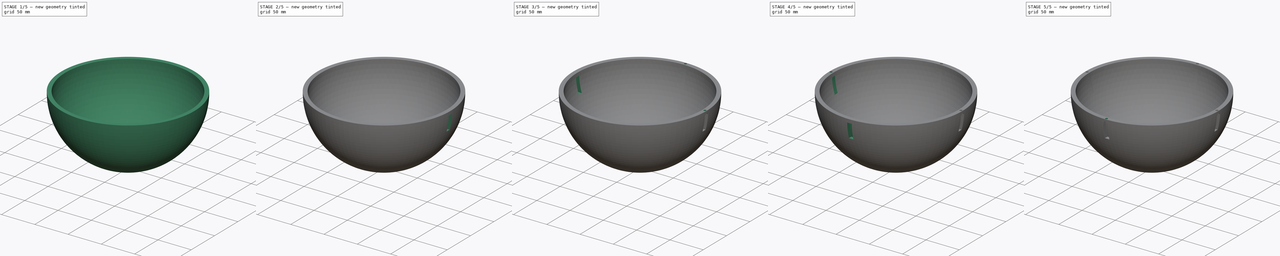
[diagram: build sequence overview — one tinted view per stage of 5, left to right]
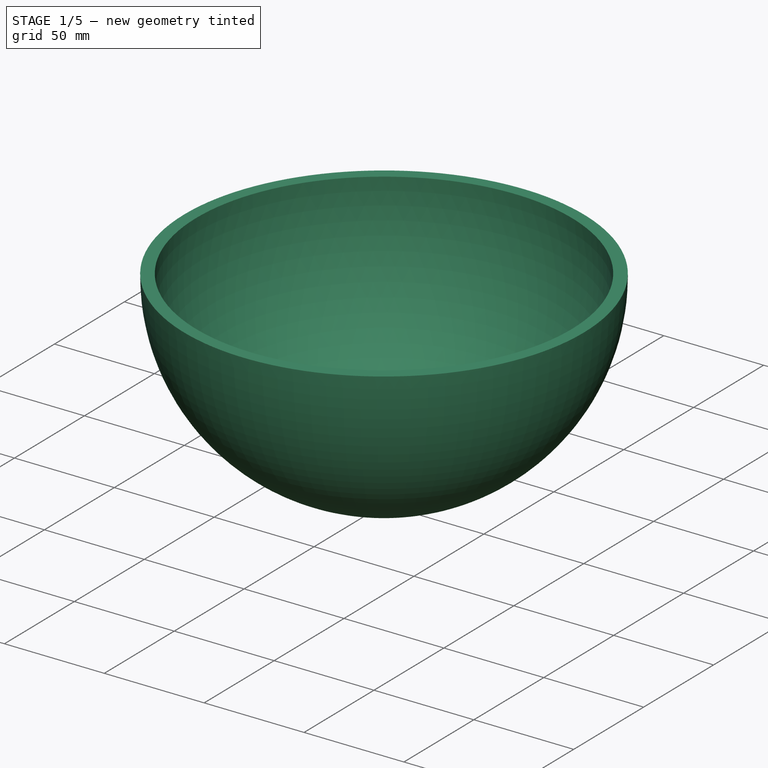
[diagram: stage 1 of 5 — iso view after this stage's code; geometry added in this stage tinted green]
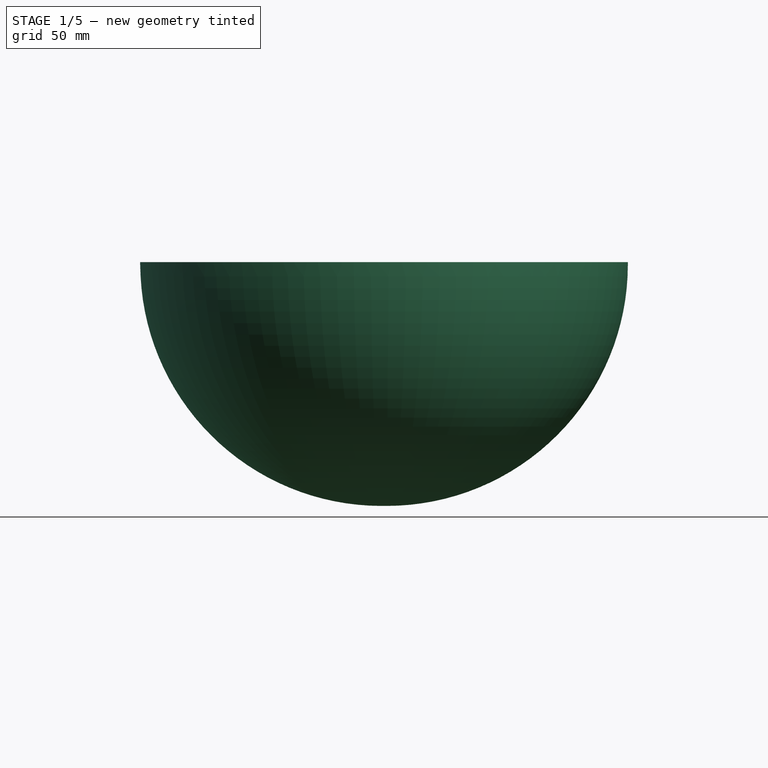
[diagram: stage 1 of 5 — front view after this stage's code; geometry added in this stage tinted green]
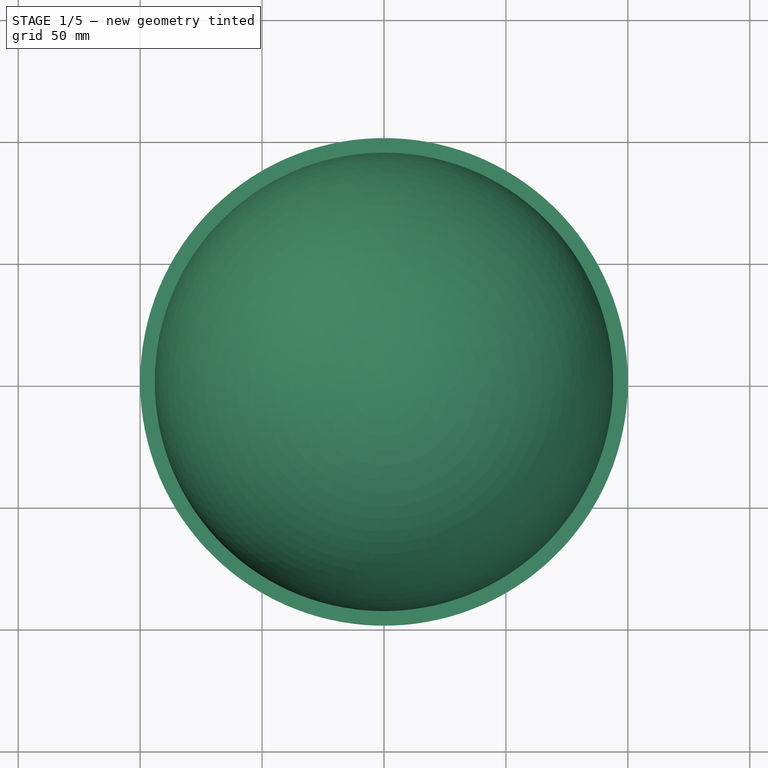
[diagram: stage 1 of 5 — top view after this stage's code; geometry added in this stage tinted green]
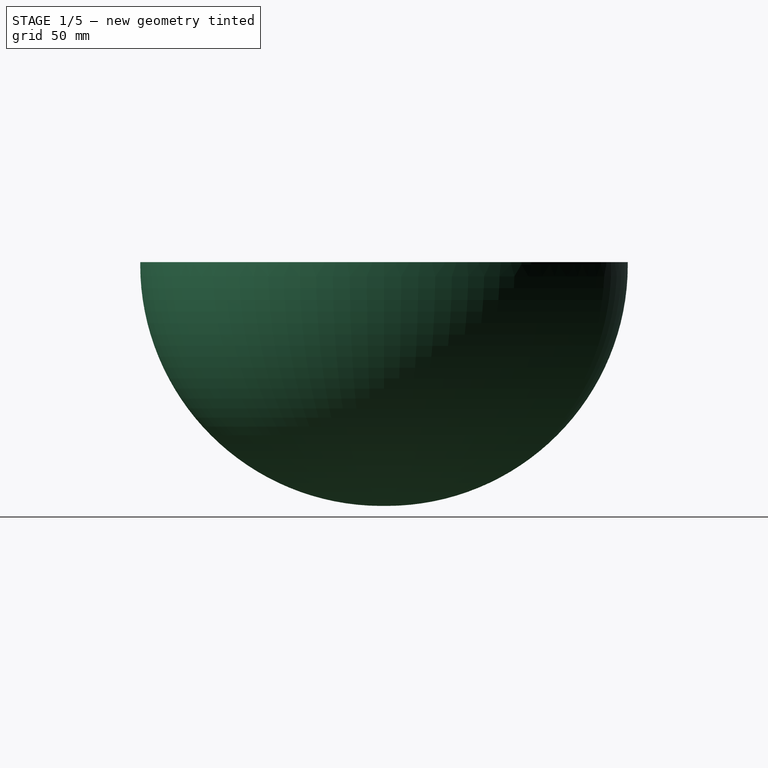
[diagram: stage 1 of 5 — right view after this stage's code; geometry added in this stage tinted green]
FCSTD DOCUMENT  (FreeCAD 0.21R33668 +26 (Git))
Label: half_sphere
License: All rights reserved
LicenseURL: https://en.wikipedia.org/wiki/All_rights_reserved
objects: PartDesign::Mirrored×8, Sketcher::SketchObject×5, PartDesign::Pad×3, PartDesign::SubtractiveSphere×3, PartDesign::Pocket×2, PartDesign::Fillet×1, PartDesign::Body×1
note: 32 computed .brp shape members not serialized (recipe doc carries the construction recipe); baked Part::Feature solids carry a one-line shape summary decoded from their .brp

FEATURE [Sketcher::SketchObject] Sketch
  FullyConstrained = false
  MapMode = 5
  Support = -> [XY_Plane]
  sketch-geometry (2):
    g0: Circle CenterX=0 CenterY=0 CenterZ=0 NormalX=0 NormalY=0 NormalZ=1 AngleXU=0 Radius=100
    g1: GeomPoint X=-59.6161 Y=80.2865 Z=0
  constraints (3):
    c: Coincident(g0,g-1)
    c: PointOnObject(g1,g0)
    c: Distance(g1,g0) = 100
FEATURE [PartDesign::Pad] Pad
  Direction = (0,0,1)
  Length = 100
  Length2 = 10
  Profile = -> Sketch
  ReferenceAxis = -> Sketch [N_Axis]
  Type = 0
FEATURE [PartDesign::Fillet] Fillet
  Base = -> Pad [Edge2]
  BaseFeature = -> Pad
  Radius = 99
  SupportTransform = false
  UseAllEdges = false
FEATURE [PartDesign::SubtractiveSphere] Sphere
  Angle1 = -89
  Angle2 = 90
  Angle3 = 360
  AttacherType = Attacher::AttachEngine3D
  AttachmentOffset = pos=(0,0,100) rot=(0,0,1;0rad)
  BaseFeature = -> Fillet
  MapMode = 5
  Placement = pos=(0,0,100) rot=(0,0,1;0rad)
  Radius = 94
  Support = -> [XY_Plane]
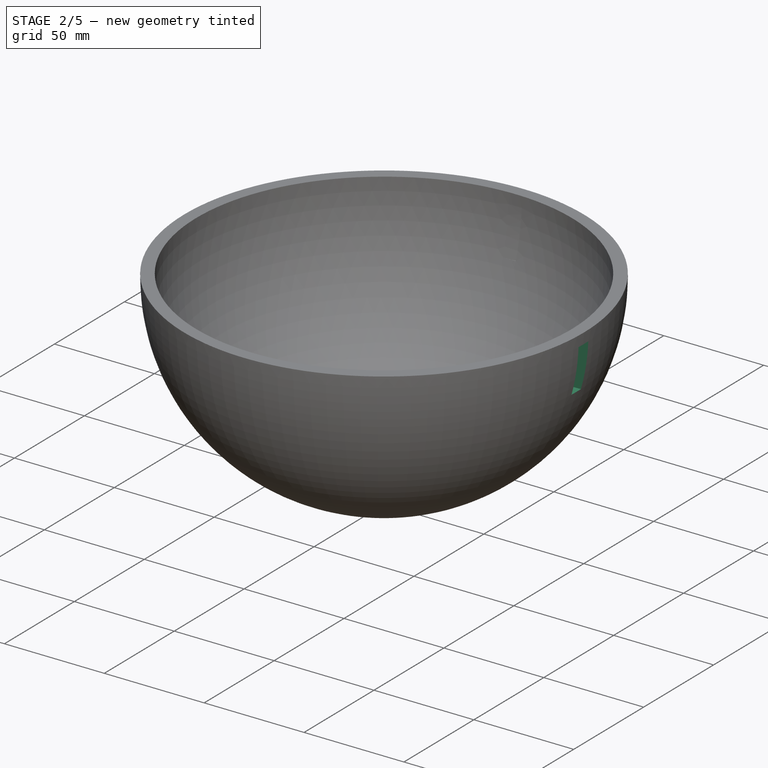
[diagram: stage 2 of 5 — iso view after this stage's code; geometry added in this stage tinted green]
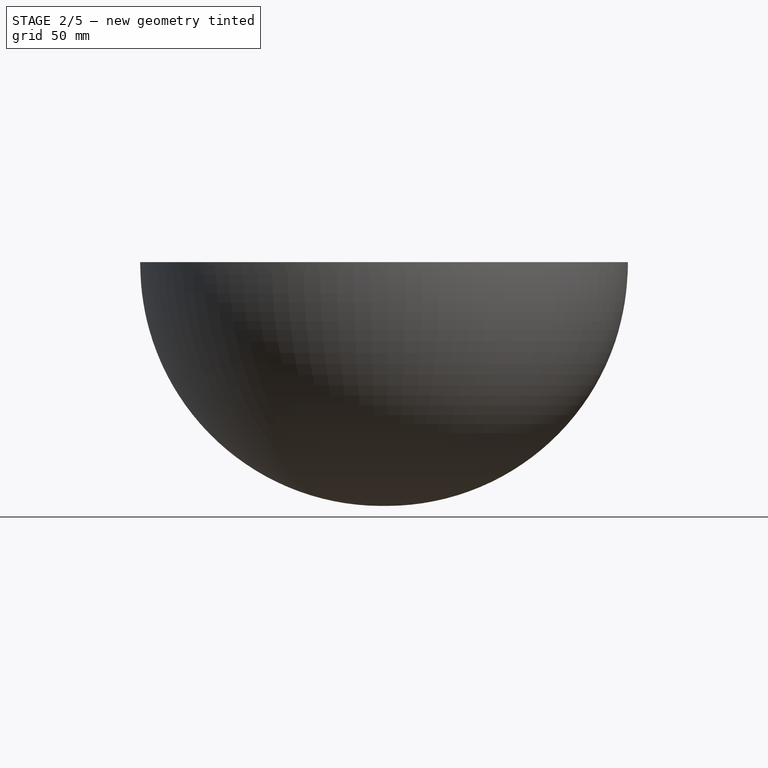
[diagram: stage 2 of 5 — front view after this stage's code; geometry added in this stage tinted green]
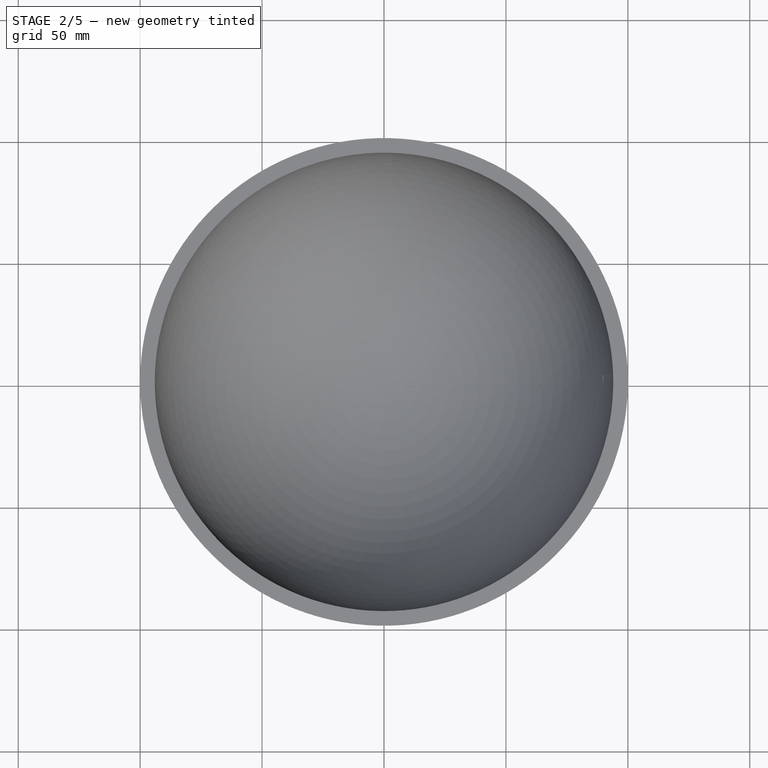
[diagram: stage 2 of 5 — top view after this stage's code; geometry added in this stage tinted green]
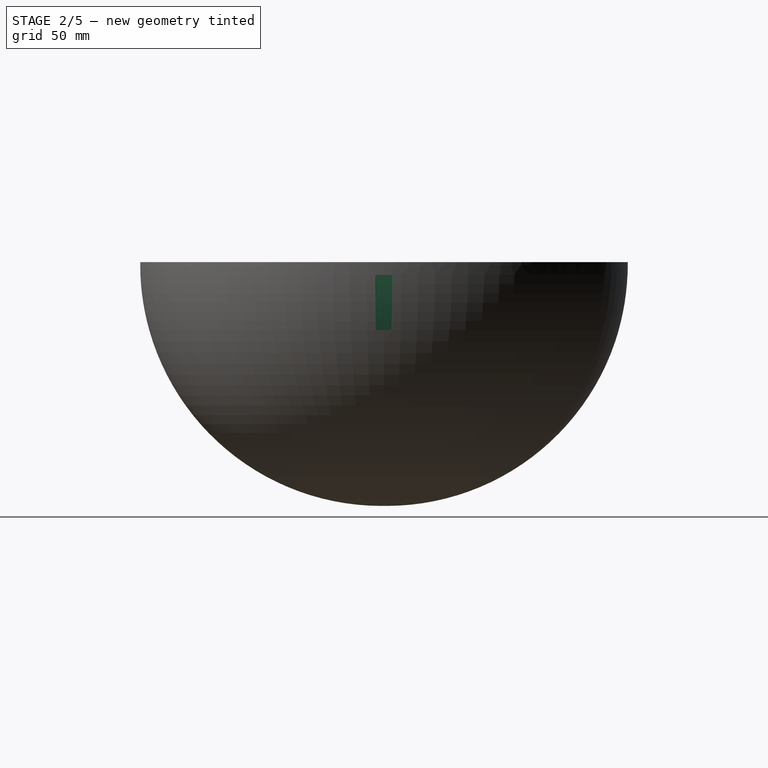
[diagram: stage 2 of 5 — right view after this stage's code; geometry added in this stage tinted green]
FEATURE [PartDesign::SubtractiveSphere] Sphere001
  Angle1 = -16
  Angle2 = -3
  Angle3 = 4
  AttacherType = Attacher::AttachEngine3D
  AttachmentOffset = pos=(0,0,100) rot=(0,0,-1;0.034907rad)
  BaseFeature = -> Sphere
  MapMode = 5
  Placement = pos=(0,0,100) rot=(0,0,-1;0.034907rad)
  Radius = 101
  Support = -> [XY_Plane]
FEATURE [PartDesign::SubtractiveSphere] Sphere002
  Angle1 = -16
  Angle2 = -3
  Angle3 = 4
  AttacherType = Attacher::AttachEngine3D
  AttachmentOffset = pos=(0,0,100) rot=(0,0,1;1.53589rad)
  BaseFeature = -> Sphere001
  MapMode = 5
  Placement = pos=(0,0,100) rot=(0,0,1;1.53589rad)
  Radius = 101
  Support = -> [XY_Plane]
FEATURE [Sketcher::SketchObject] Sketch001
  FullyConstrained = false
  MapMode = 5
  Placement = pos=(0,0,100) rot=(0,0,1;1.53589rad)
  Support = -> [Sphere002]
  sketch-geometry (7):
    g0: LineSegment StartX=0 StartY=0 StartZ=0 EndX=97.4407 EndY=3.4 EndZ=0
    g1: Circle CenterX=97.4407 CenterY=3.4 CenterZ=0 NormalX=0 NormalY=0 NormalZ=1 AngleXU=0 Radius=1.75
    g2: GeomPoint X=98.1589 Y=4.99582 Z=0
    g3: LineSegment StartX=97.4407 StartY=3.4 StartZ=0 EndX=97.4407 EndY=0 EndZ=0
    g4: Circle CenterX=3.39948 CenterY=-97.4407 CenterZ=0 NormalX=0 NormalY=0 NormalZ=1 AngleXU=0 Radius=1.75
    g5: GeomPoint X=5.09279 Y=-97.8825 Z=0
    g6: LineSegment StartX=0 StartY=-97.5 StartZ=0 EndX=3.39948 EndY=-97.4407 EndZ=0
  constraints (16):
    c: Coincident(g0,g-1)
    c: Distance(g0) = 97.5
    c: Coincident(g1,g0)
    c: PointOnObject(g2,g1)
    c: Distance(g1,g2) = 1.75
    c: Coincident(g3,g1)
    c: PointOnObject(g3,g-1)
    c: Vertical(g3)
    c: Distance(g3) = 3.4
    c: Distance(g0,g4) = 97.5
    c: PointOnObject(g5,g4)
    c: Distance(g4,g5) = 1.75
    c: PointOnObject(g6,g-2)
    c: Coincident(g6,g4)
    c: Distance(g6,g0) = 97.5
    c: Distance(g6) = 3.4
FEATURE [Sketcher::SketchObject] Sketch002
  FullyConstrained = false
  MapMode = 5
  Placement = pos=(0,0,94.7141) rot=(0.71934,0.694658,0;3.14159rad)
  sketch-geometry (6):
    g0: Circle CenterX=3.39948 CenterY=97.4407 CenterZ=0 NormalX=0 NormalY=0 NormalZ=1 AngleXU=0 Radius=3
    g1: Circle CenterX=97.4407 CenterY=-3.39948 CenterZ=0 NormalX=0 NormalY=0 NormalZ=1 AngleXU=0 Radius=3
    g2: GeomPoint X=0 Y=97.5 Z=0
    g3: GeomPoint X=97.5 Y=0 Z=0
    g4: GeomPoint X=99.8512 Y=-1.61351 Z=0
    g5: GeomPoint X=3.18378 Y=100.433 Z=0
  constraints (12):
    c: Distance(g-1,g1) = 97.5
    c: Distance(g0,g-1) = 97.5
    c: PointOnObject(g2,g-2)
    c: PointOnObject(g3,g-1)
    c: Distance(g-1,g3) = 97.5
    c: Distance(g-1,g2) = 97.5
    c: Distance(g2,g0) = 3.4
    c: Distance(g3,g1) = 3.4
    c: PointOnObject(g4,g1)
    c: Distance(g1,g4) = 3
    c: PointOnObject(g5,g0)
    c: Distance(g5,g0) = 3
FEATURE [Sketcher::SketchObject] Sketch003
  FullyConstrained = false
  MapMode = 5
  Placement = pos=(0,0,100) rot=(0.012342,0.707053,0.707053;3.11691rad)
  Support = -> [Sphere002]
  sketch-geometry (4):
    g0: ArcOfCircle CenterX=0 CenterY=0 CenterZ=0 NormalX=0 NormalY=0 NormalZ=1 AngleXU=0 Radius=94 StartAngle=3.14159 EndAngle=3.44295
    g1: ArcOfCircle CenterX=0 CenterY=0 CenterZ=0 NormalX=0 NormalY=0 NormalZ=1 AngleXU=0 Radius=95 StartAngle=3.14159 EndAngle=3.43968
    g2: LineSegment StartX=-90.8105 StartY=-27.9007 StartZ=0 EndX=-89.7639 EndY=-27.9007 EndZ=0
    g3: LineSegment StartX=-95 StartY=1.16e-14 StartZ=0 EndX=-94 EndY=0 EndZ=0
  constraints (11):
    c: Coincident(g0,g-1)
    c: PointOnObject(g0,g-1)
    c: Distance(g0,g0) = 94
    c: Coincident(g1,g0)
    c: PointOnObject(g1,g-1)
    c: Distance(g1,g0) = 95
    c: Coincident(g2,g1)
    c: Coincident(g2,g0)
    c: Coincident(g3,g1)
    c: Coincident(g3,g0)
    c: Horizontal(g2)
FEATURE [Sketcher::SketchObject] Sketch004
  FullyConstrained = false
  MapMode = 5
  Placement = pos=(0,0,100) rot=(0.563916,0.583952,0.583952;2.11466rad)
  sketch-geometry (4):
    g0: ArcOfCircle CenterX=0 CenterY=0 CenterZ=0 NormalX=0 NormalY=0 NormalZ=1 AngleXU=0 Radius=94 StartAngle=5.98238 EndAngle=6.22701
    g1: ArcOfCircle CenterX=0 CenterY=0 CenterZ=0 NormalX=0 NormalY=0 NormalZ=1 AngleXU=0 Radius=95 StartAngle=5.98564 EndAngle=6.2276
    g2: LineSegment StartX=94.8533 StartY=-5.27795 StartZ=0 EndX=93.8517 EndY=-5.27795 EndZ=0
    g3: LineSegment StartX=90.8257 StartY=-27.8513 StartZ=0 EndX=89.7792 EndY=-27.8513 EndZ=0
  constraints (10):
    c: Coincident(g0,g-1)
    c: Distance(g0,g0) = 94
    c: Coincident(g1,g0)
    c: Distance(g1,g0) = 95
    c: Coincident(g2,g1)
    c: Coincident(g2,g0)
    c: Horizontal(g2)
    c: Coincident(g3,g1)
    c: Coincident(g3,g0)
    c: Horizontal(g3)
FEATURE [PartDesign::Pad] Pad001
  BaseFeature = -> Sphere002
  Direction = (0.999391,0.0348995,1e-16)
  Length = 13
  Length2 = 10
  Midplane = true
  Placement = pos=(0,0,100) rot=(0,0,1;1.53589rad)
  Profile = -> Sketch004
  ReferenceAxis = -> Sketch004 [N_Axis]
  Type = 0
FEATURE [PartDesign::Pad] Pad002
  BaseFeature = -> Pad001
  Direction = (0.0348995,0.999391,0)
  Length = 7
  Length2 = 10
  Placement = pos=(0,0,100) rot=(0,0,1;1.53589rad)
  Profile = -> Sketch003
  ReferenceAxis = -> Sketch003 [N_Axis]
  Type = 0
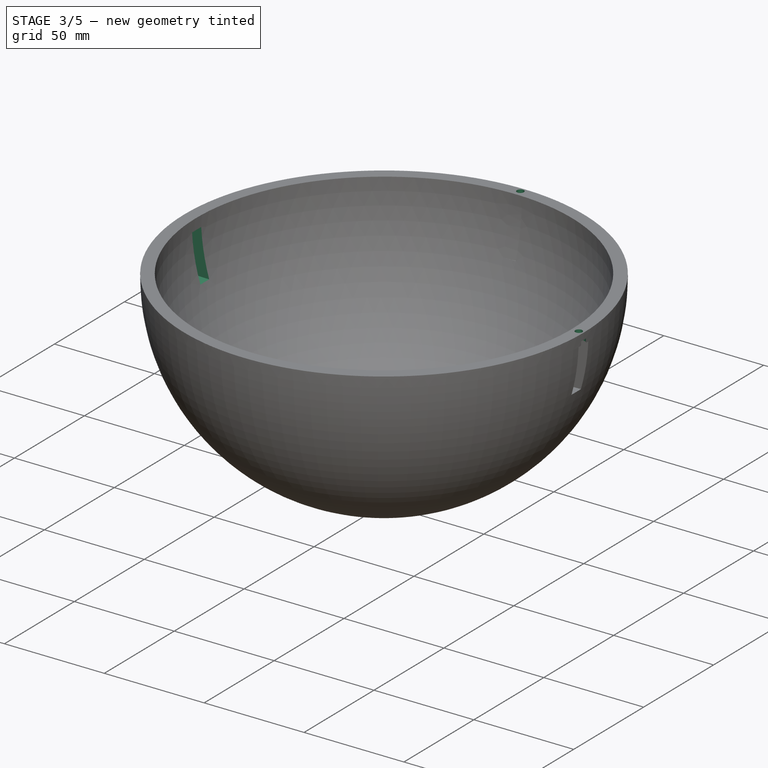
[diagram: stage 3 of 5 — iso view after this stage's code; geometry added in this stage tinted green]
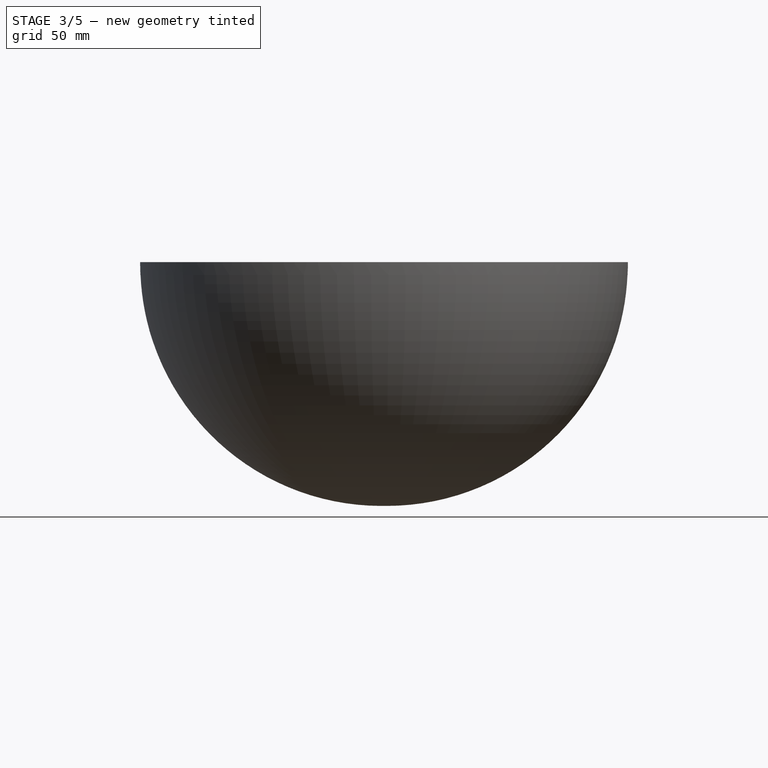
[diagram: stage 3 of 5 — front view after this stage's code; geometry added in this stage tinted green]
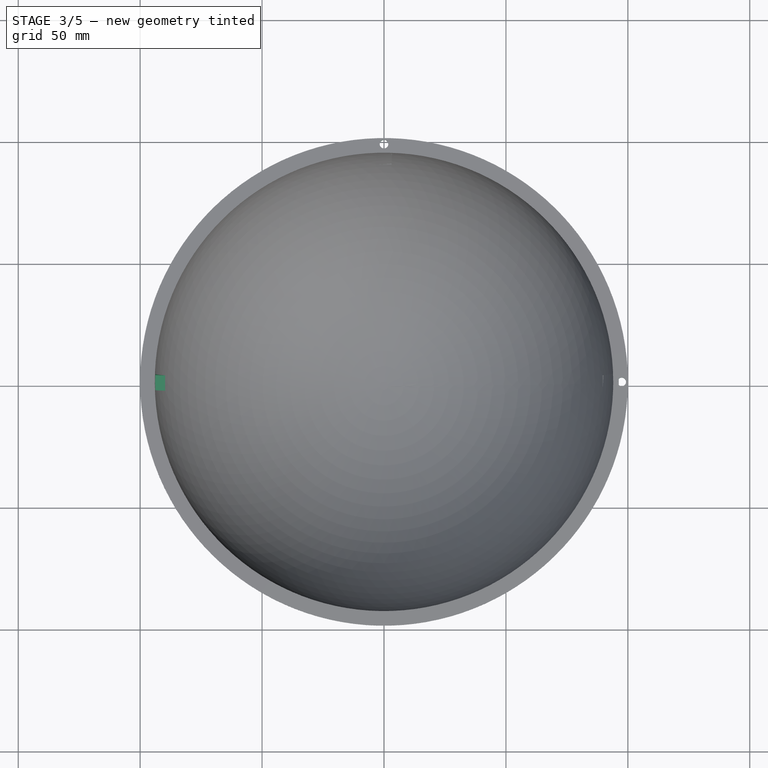
[diagram: stage 3 of 5 — top view after this stage's code; geometry added in this stage tinted green]
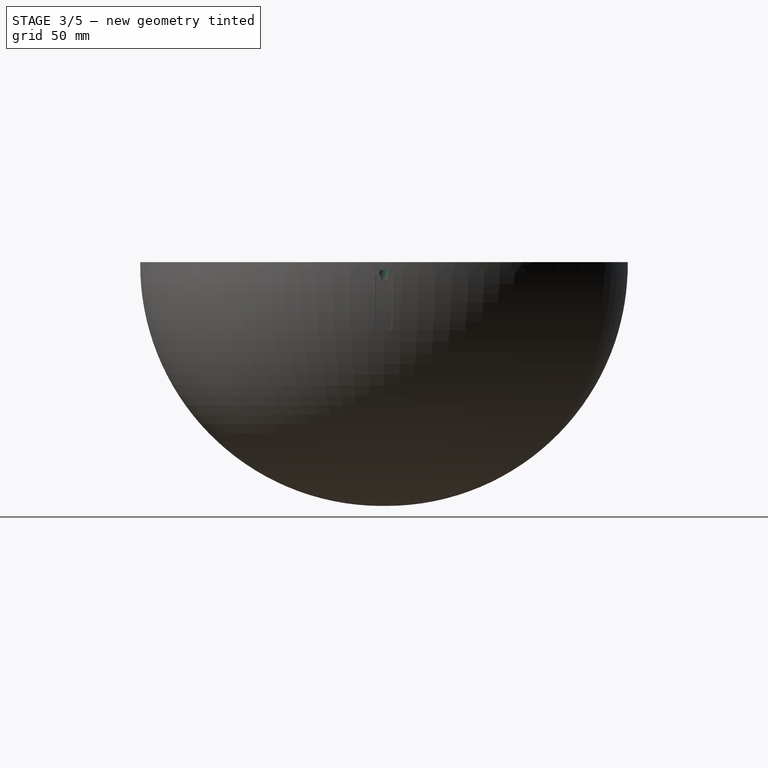
[diagram: stage 3 of 5 — right view after this stage's code; geometry added in this stage tinted green]
FEATURE [PartDesign::Pocket] Pocket
  BaseFeature = -> Pad002
  Direction = (0,0,-1)
  Length = 6
  Length2 = 5
  Placement = pos=(0,0,100) rot=(0,0,1;1.53589rad)
  Profile = -> Sketch001
  ReferenceAxis = -> Sketch001 [N_Axis]
  Type = 0
FEATURE [PartDesign::Pocket] Pocket001
  BaseFeature = -> Pocket
  Direction = (0,0,1)
  Length = 4
  Length2 = 5
  Midplane = true
  Placement = pos=(0,0,100) rot=(0,0,1;1.53589rad)
  Profile = -> Sketch002
  ReferenceAxis = -> Sketch002 [N_Axis]
  Type = 0
FEATURE [PartDesign::Mirrored] Mirrored
  BaseFeature = -> Pocket001
  MirrorPlane = -> YZ_Plane
  Originals = -> [Sphere001]
  Placement = pos=(0,0,100) rot=(0,0,1;1.53589rad)
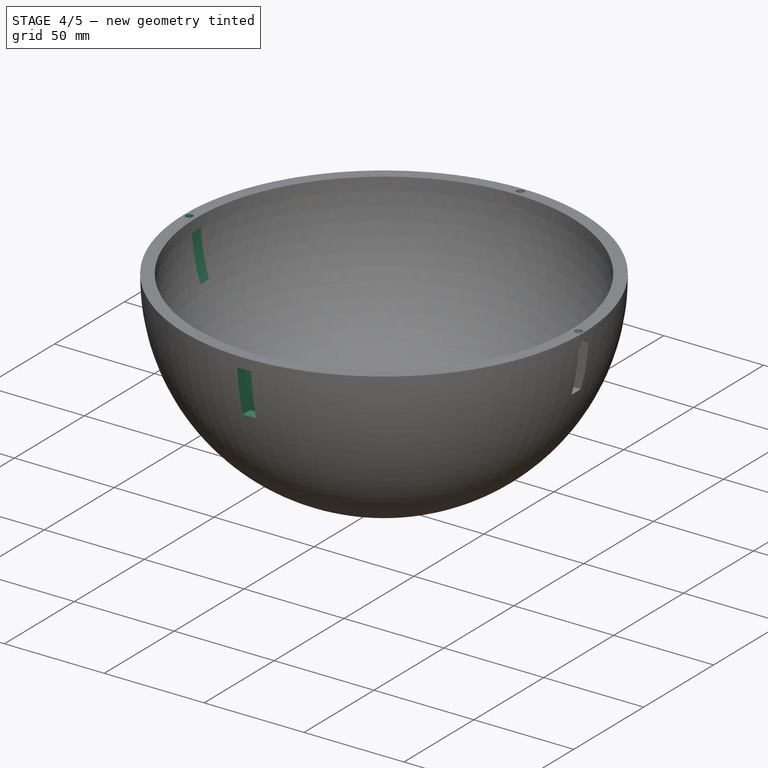
[diagram: stage 4 of 5 — iso view after this stage's code; geometry added in this stage tinted green]
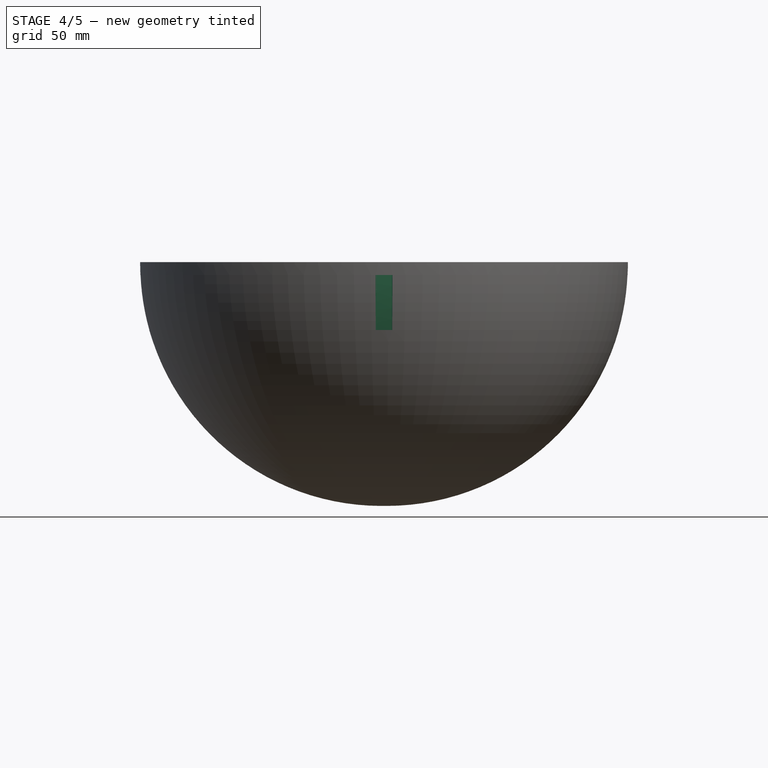
[diagram: stage 4 of 5 — front view after this stage's code; geometry added in this stage tinted green]
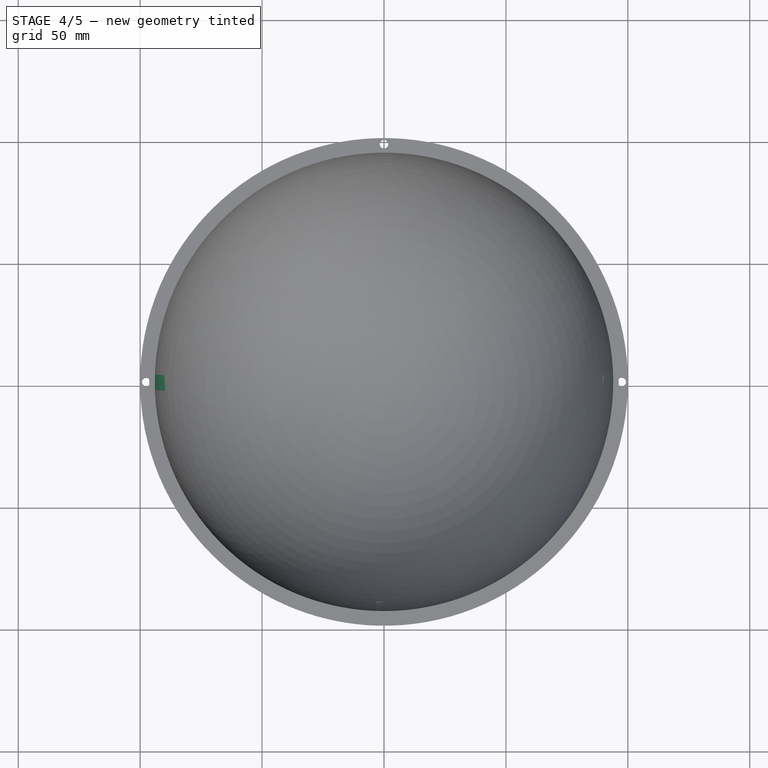
[diagram: stage 4 of 5 — top view after this stage's code; geometry added in this stage tinted green]
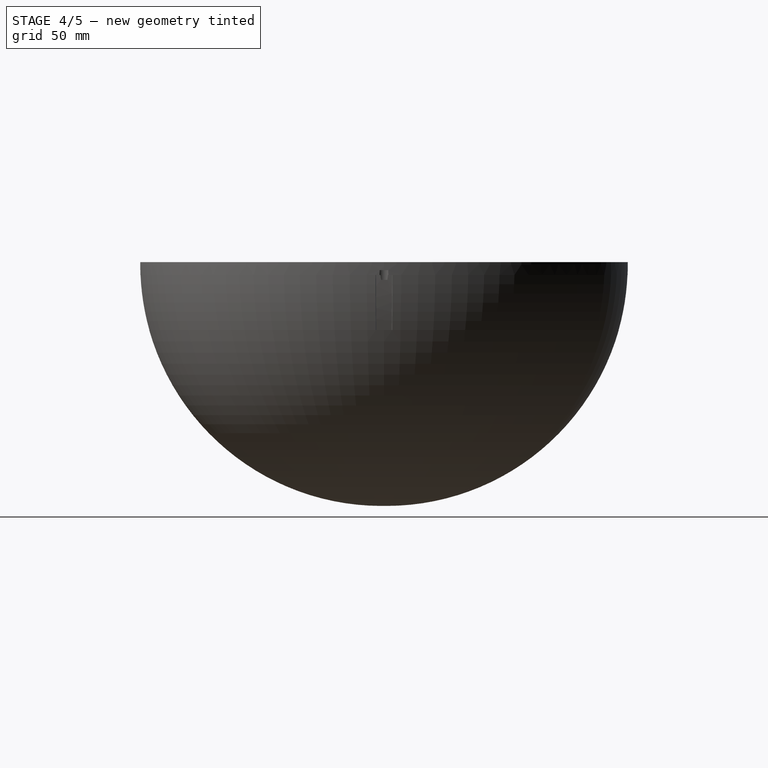
[diagram: stage 4 of 5 — right view after this stage's code; geometry added in this stage tinted green]
FEATURE [PartDesign::Mirrored] Mirrored001
  BaseFeature = -> Mirrored
  MirrorPlane = -> XZ_Plane
  Originals = -> [Sphere002]
  Placement = pos=(0,0,100) rot=(0,0,1;1.53589rad)
FEATURE [PartDesign::Mirrored] Mirrored002
  BaseFeature = -> Mirrored001
  MirrorPlane = -> Sketch004 [V_Axis]
  Originals = -> [Pad001]
  Placement = pos=(0,0,100) rot=(0,0,1;1.53589rad)
FEATURE [PartDesign::Mirrored] Mirrored003
  BaseFeature = -> Mirrored002
  MirrorPlane = -> YZ_Plane
  Originals = -> [Pad002]
  Placement = pos=(0,0,100) rot=(0,0,1;1.53589rad)
FEATURE [PartDesign::Mirrored] Mirrored004
  BaseFeature = -> Mirrored003
  MirrorPlane = -> YZ_Plane
  Originals = -> [Pocket]
  Placement = pos=(0,0,100) rot=(0,0,1;1.53589rad)
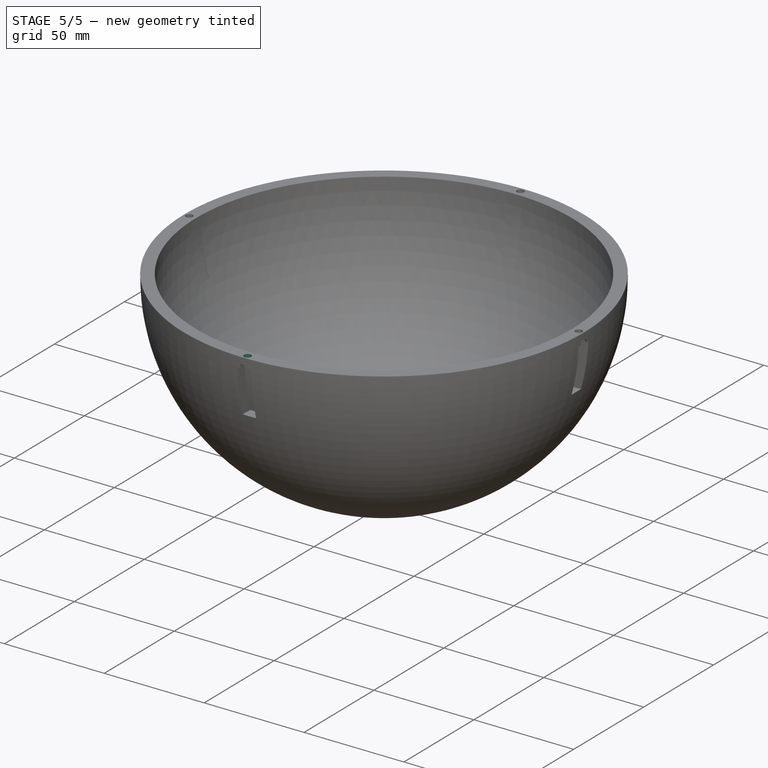
[diagram: stage 5 of 5 — iso view after this stage's code; geometry added in this stage tinted green]
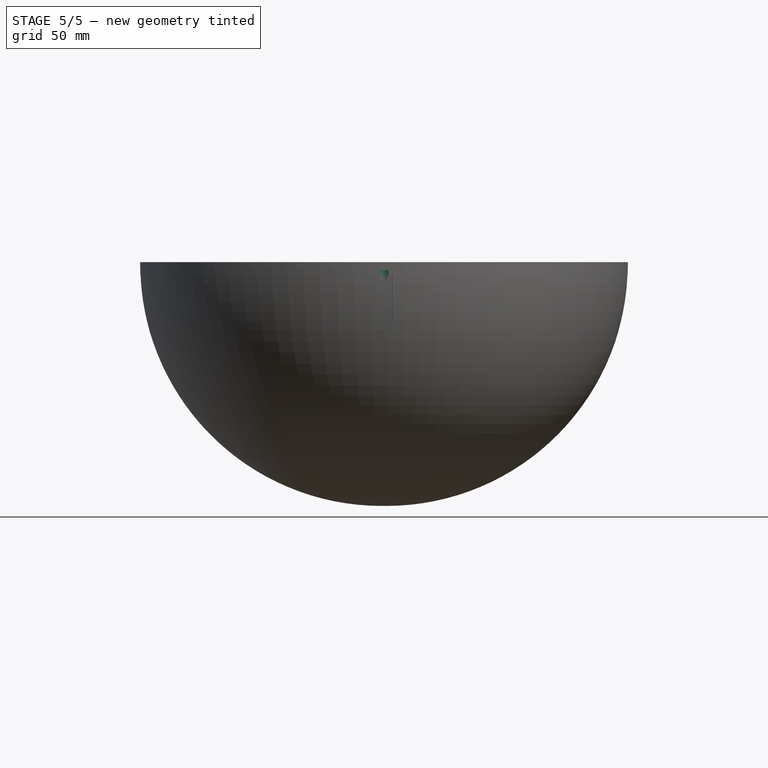
[diagram: stage 5 of 5 — front view after this stage's code; geometry added in this stage tinted green]
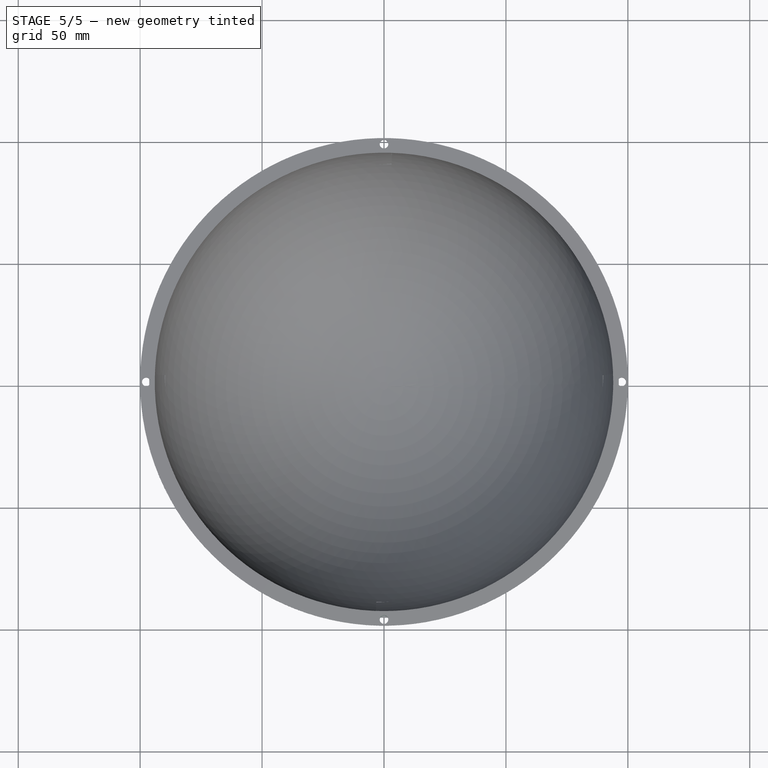
[diagram: stage 5 of 5 — top view after this stage's code; geometry added in this stage tinted green]
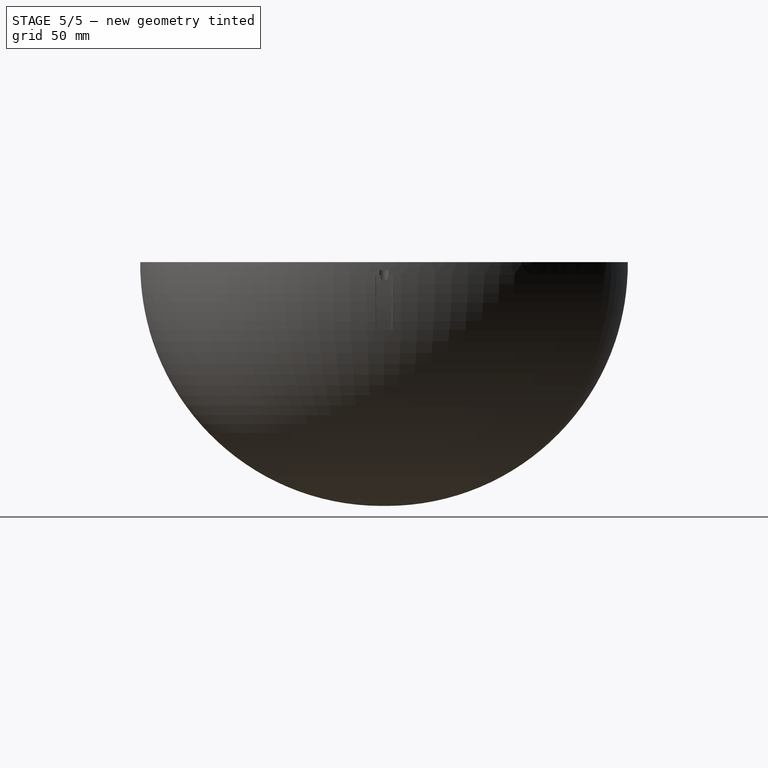
[diagram: stage 5 of 5 — right view after this stage's code; geometry added in this stage tinted green]
FEATURE [PartDesign::Mirrored] Mirrored005
  BaseFeature = -> Mirrored004
  MirrorPlane = -> XZ_Plane
  Originals = -> [Pocket]
  Placement = pos=(0,0,100) rot=(0,0,1;1.53589rad)
FEATURE [PartDesign::Mirrored] Mirrored006
  BaseFeature = -> Mirrored005
  MirrorPlane = -> YZ_Plane
  Originals = -> [Pocket001]
  Placement = pos=(0,0,100) rot=(0,0,1;1.53589rad)
FEATURE [PartDesign::Mirrored] Mirrored007
  BaseFeature = -> Mirrored006
  MirrorPlane = -> XZ_Plane
  Originals = -> [Pocket001]
  Placement = pos=(0,0,100) rot=(0,0,1;1.53589rad)
FEATURE [PartDesign::Body] Body
  Group = -> [Sketch,Pad,Fillet,Sphere,Sphere001,Sphere002,Sketch001,Sketch002,Sketch003,Sketch004,Pad001,Pad002,Pocket,Pocket001,Mirrored,Mirrored001,Mirrored002,Mirrored003,Mirrored004,Mirrored005,Mirrored006,Mirrored007]
  Origin = -> Origin
  Tip = -> Mirrored007
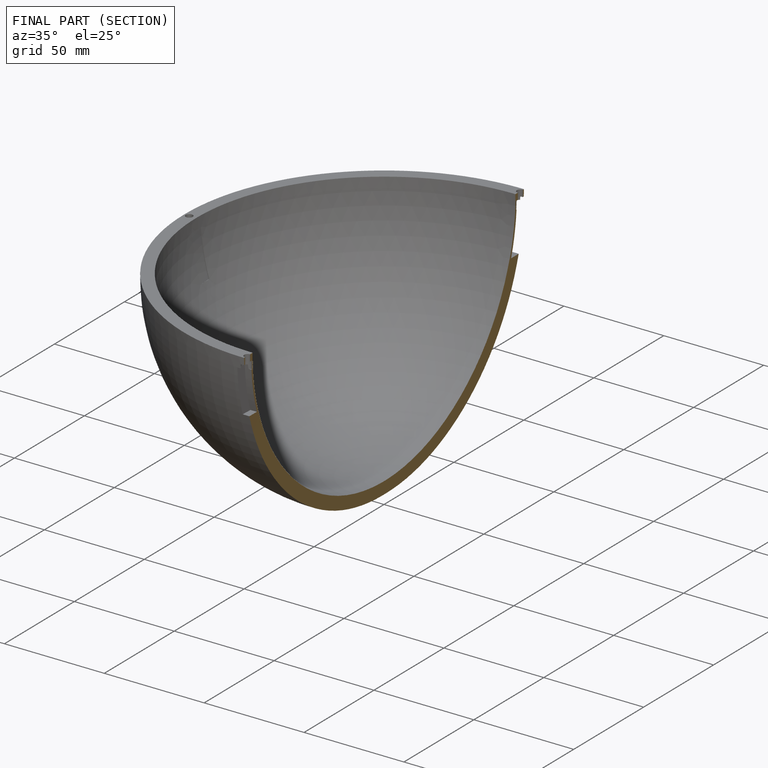
[diagram: finished part — half-section view (interior)]
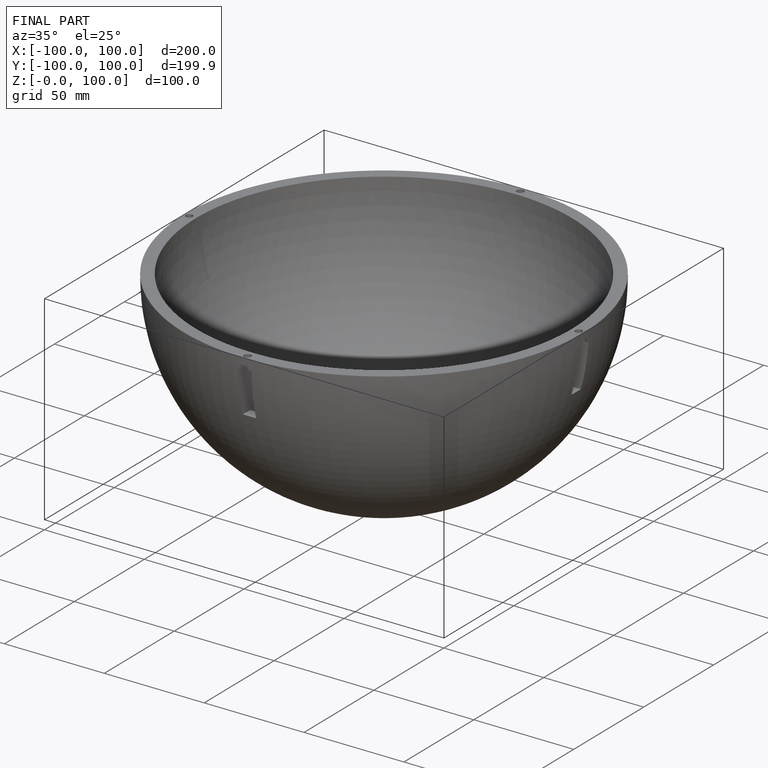
[diagram: finished part — iso view with bounding-box wireframe]
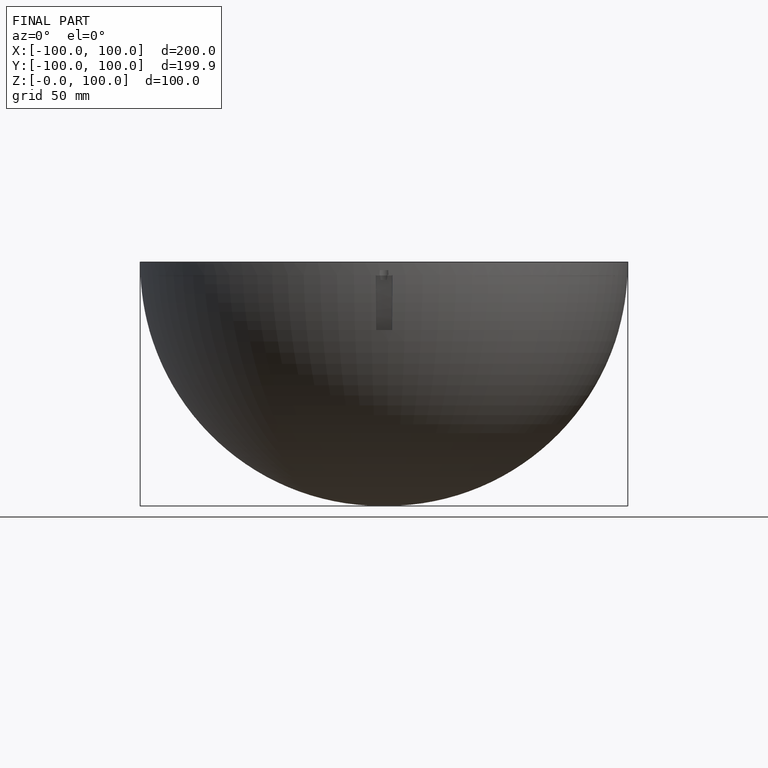
[diagram: finished part — front view with bounding-box wireframe]
